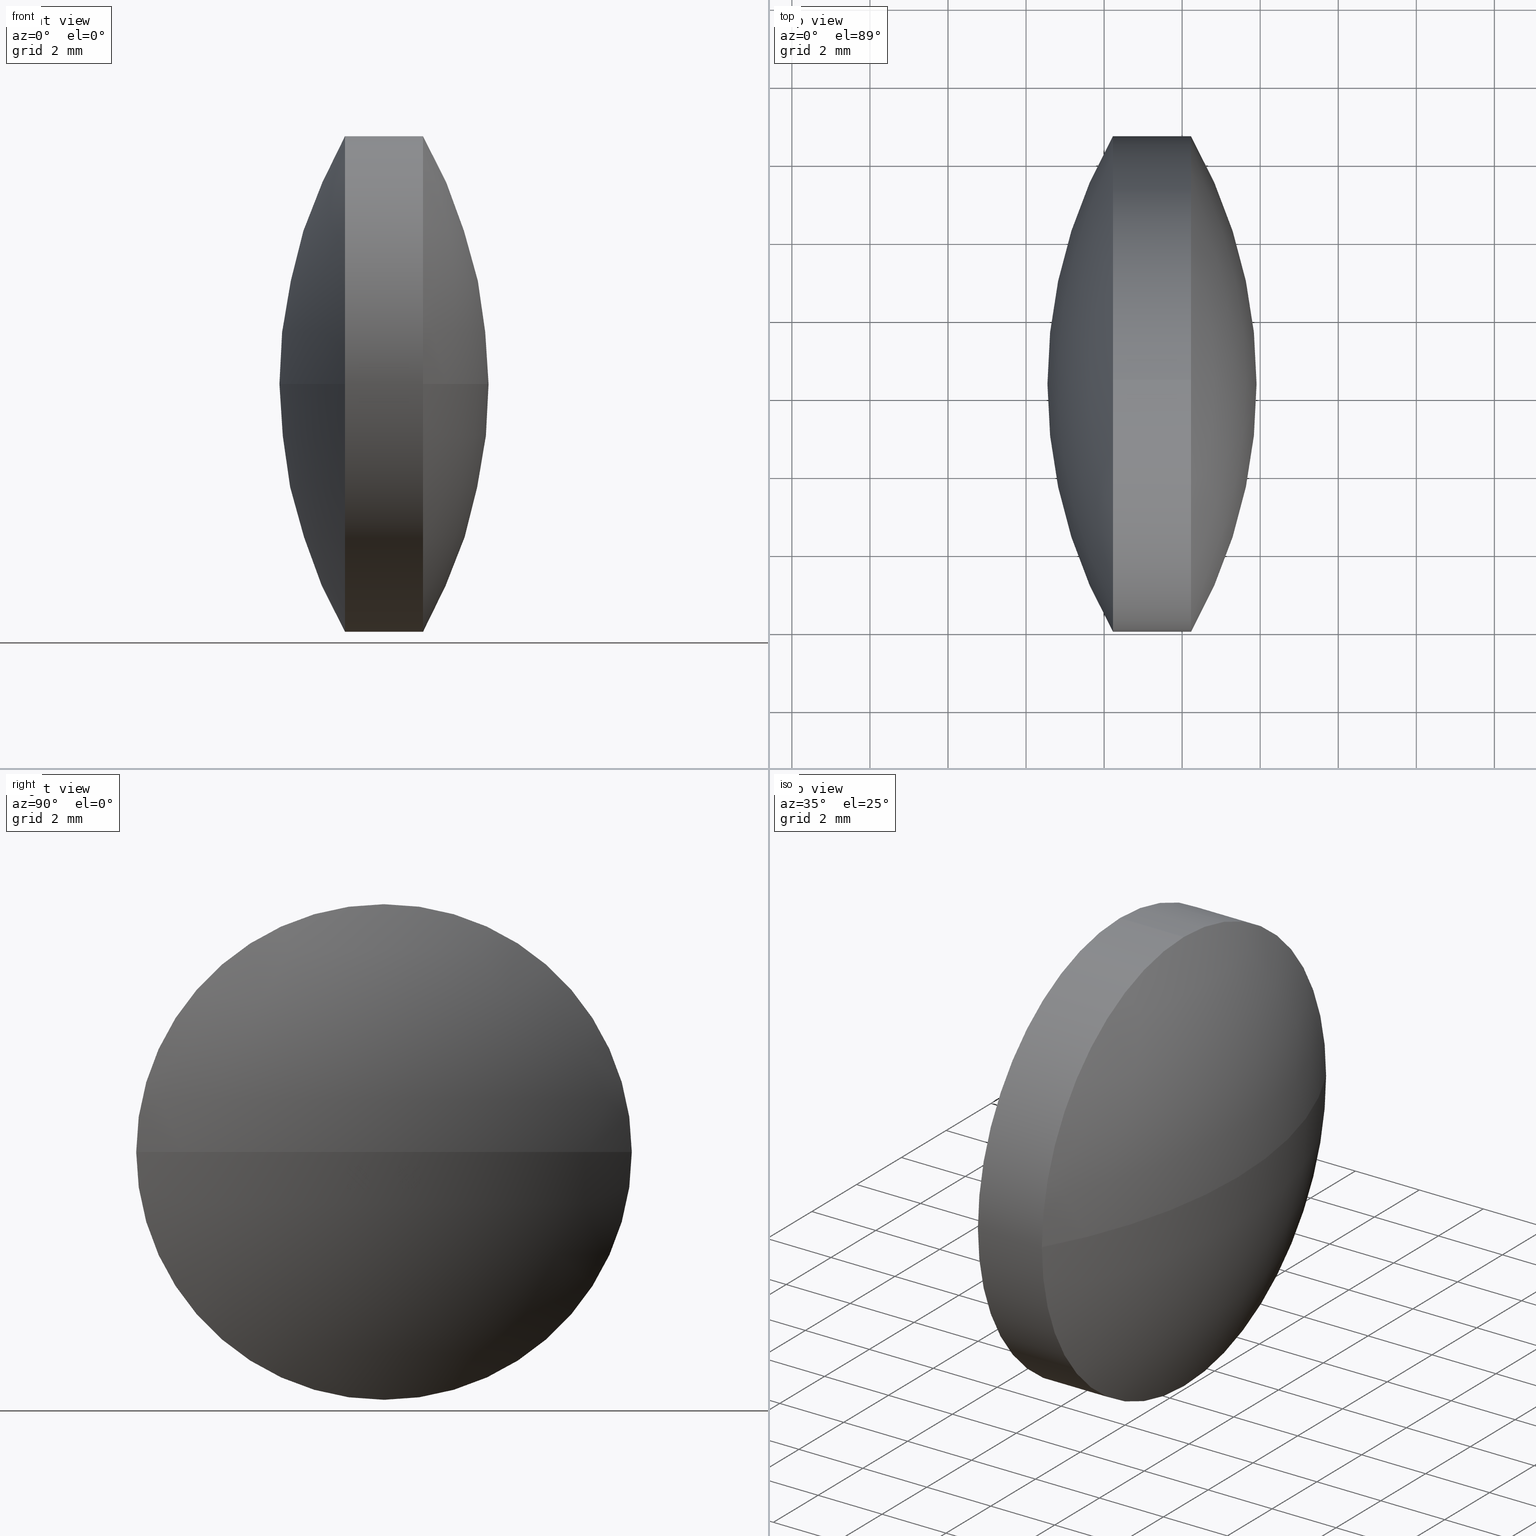
[diagram: canonical four-view strip — front | top / right | iso, engineering-drawing reading convention]
A machine part, canonical four-view strip (front | top / right | iso — engineering-drawing reading convention). The complete STEP part file that produces these views, byte-faithful:
ISO-10303-21;
HEADER;
FILE_DESCRIPTION (( 'STEP AP203' ),
    '1' );
FILE_NAME ('110094.STEP',
    '2019-07-04T02:54:57',
    ( '' ),
    ( '' ),
    'SwSTEP 2.0',
    'SolidWorks 2016',
    '' );
FILE_SCHEMA (( 'CONFIG_CONTROL_DESIGN' ));
ENDSEC;

DATA;
#1 = COORDINATED_UNIVERSAL_TIME_OFFSET ( 8, 0, .AHEAD. ) ;
#2 = EDGE_CURVE ( 'NONE', #47, #90, #146, .T. ) ;
#3 = ORIENTED_EDGE ( 'NONE', *, *, #37, .T. ) ;
#4 = CC_DESIGN_APPROVAL ( #145, ( #206 ) ) ;
#5 = EDGE_LOOP ( 'NONE', ( #221, #13, #307, #100 ) ) ;
#6 = AXIS2_PLACEMENT_3D ( 'NONE', #250, #91, #310 ) ;
#7 = SECURITY_CLASSIFICATION_LEVEL ( 'unclassified' ) ;
#8 = AXIS2_PLACEMENT_3D ( 'NONE', #274, #305, #254 ) ;
#9 = APPROVAL_ROLE ( '' ) ;
#10 = VERTEX_POINT ( 'NONE', #329 ) ;
#11 = DATE_AND_TIME ( #32, #161 ) ;
#12 = DATE_AND_TIME ( #141, #191 ) ;
#13 = ORIENTED_EDGE ( 'NONE', *, *, #230, .T. ) ;
#14 = PERSON_AND_ORGANIZATION ( #45, #50 ) ;
#15 = CARTESIAN_POINT ( 'NONE',  ( 42.22761479768103500, 17.95744082790685400, -7.776240560623605200E-016 ) ) ;
#16 = DIRECTION ( 'NONE',  ( 0.0000000000000000000, 0.0000000000000000000, 1.000000000000000000 ) ) ;
#17 = AXIS2_PLACEMENT_3D ( 'NONE', #117, #171, #33 ) ;
#18 = CYLINDRICAL_SURFACE ( 'NONE', #79, 6.349782293178511100 ) ;
#19 = CARTESIAN_POINT ( 'NONE',  ( 44.22761479768103500, 24.30722312108537200, 0.0000000000000000000 ) ) ;
#20 =( NAMED_UNIT ( * ) PLANE_ANGLE_UNIT ( ) SI_UNIT ( $, .RADIAN. ) );
#21 = CC_DESIGN_SECURITY_CLASSIFICATION ( #206, ( #72 ) ) ;
#22 = PRODUCT_DEFINITION_SHAPE ( 'NONE', 'NONE',  #188 ) ;
#23 = PERSON_AND_ORGANIZATION_ROLE ( 'design_owner' ) ;
#24 = CC_DESIGN_PERSON_AND_ORGANIZATION_ASSIGNMENT ( #139, #165, ( #238 ) ) ;
#25 = VERTEX_POINT ( 'NONE', #196 ) ;
#26 = AXIS2_PLACEMENT_3D ( 'NONE', #150, #311, #67 ) ;
#27 = ORIENTED_EDGE ( 'NONE', *, *, #343, .T. ) ;
#28 = DATE_AND_TIME ( #241, #127 ) ;
#29 = COORDINATED_UNIVERSAL_TIME_OFFSET ( 8, 0, .AHEAD. ) ;
#30 = EDGE_LOOP ( 'NONE', ( #247, #218, #3, #120 ) ) ;
#31 = DIRECTION ( 'NONE',  ( -1.000000000000000000, -0.0000000000000000000, -0.0000000000000000000 ) ) ;
#32 = CALENDAR_DATE ( 2019, 4, 7 ) ;
#33 = DIRECTION ( 'NONE',  ( 1.000000000000000000, 0.0000000000000000000, 0.0000000000000000000 ) ) ;
#34 = CC_DESIGN_PERSON_AND_ORGANIZATION_ASSIGNMENT ( #298, #244, ( #72 ) ) ;
#35 = ORIENTED_EDGE ( 'NONE', *, *, #69, .F. ) ;
#36 = DIRECTION ( 'NONE',  ( 0.0000000000000000000, 0.0000000000000000000, 1.000000000000000000 ) ) ;
#37 = EDGE_CURVE ( 'NONE', #163, #47, #63, .T. ) ;
#38 = CC_DESIGN_DATE_AND_TIME_ASSIGNMENT ( #82, #138, ( #238 ) ) ;
#39 = DIRECTION ( 'NONE',  ( 0.0000000000000000000, 0.0000000000000000000, 1.000000000000000000 ) ) ;
#40 = PERSON_AND_ORGANIZATION ( #45, #50 ) ;
#41 = COORDINATED_UNIVERSAL_TIME_OFFSET ( 8, 0, .AHEAD. ) ;
#42 = APPROVAL_PERSON_ORGANIZATION ( #60, #145, #168 ) ;
#43 = DIRECTION ( 'NONE',  ( -1.000000000000000000, -0.0000000000000000000, -0.0000000000000000000 ) ) ;
#44 = DIRECTION ( 'NONE',  ( 0.0000000000000000000, 0.0000000000000000000, 1.000000000000000000 ) ) ;
#45 = PERSON ( 'δָ��', 'δָ��', 'δָ��', ('δָ��'), ('δָ��'), ('δָ��') ) ;
#46 = DIRECTION ( 'NONE',  ( -1.000000000000000000, -0.0000000000000000000, -0.0000000000000000000 ) ) ;
#47 = VERTEX_POINT ( 'NONE', #277 ) ;
#48 = CARTESIAN_POINT ( 'NONE',  ( 0.0000000000000000000, 0.0000000000000000000, 0.0000000000000000000 ) ) ;
#49 = APPLICATION_CONTEXT ( 'configuration controlled 3d designs of mechanical parts and assemblies' ) ;
#50 = ORGANIZATION ( 'δָ��', 'δָ��', '' ) ;
#51 = PERSON_AND_ORGANIZATION ( #45, #50 ) ;
#52 = CLOSED_SHELL ( 'NONE', ( #78, #220, #207, #119, #231, #129 ) ) ;
#53 = PRODUCT_RELATED_PRODUCT_CATEGORY ( 'detail', '', ( #322 ) ) ;
#54 = APPLICATION_PROTOCOL_DEFINITION ( 'international standard', 'config_control_design', 1994, #300 ) ;
#55 = MECHANICAL_CONTEXT ( 'NONE', #242, 'mechanical' ) ;
#56 = APPROVAL ( #328, 'δָ��' ) ;
#57 = SPHERICAL_SURFACE ( 'NONE', #179, 12.84252496801100900 ) ;
#58 = APPLICATION_PROTOCOL_DEFINITION ( 'international standard', 'config_control_design', 1994, #242 ) ;
#59 = PERSON_AND_ORGANIZATION ( #45, #50 ) ;
#60 = PERSON_AND_ORGANIZATION ( #45, #50 ) ;
#61 = APPROVAL_STATUS ( 'not_yet_approved' ) ;
#62 = DIRECTION ( 'NONE',  ( 0.0000000000000000000, 0.0000000000000000000, 1.000000000000000000 ) ) ;
#63 = CIRCLE ( 'NONE', #6, 6.349782293178511100 ) ;
#64 = DIRECTION ( 'NONE',  ( -0.0000000000000000000, 0.0000000000000000000, -1.000000000000000000 ) ) ;
#65 = LINE ( 'NONE', #255, #189 ) ;
#66 = DIRECTION ( 'NONE',  ( 0.0000000000000000000, 1.000000000000000000, 0.0000000000000000000 ) ) ;
#67 = DIRECTION ( 'NONE',  ( 0.0000000000000000000, 0.0000000000000000000, 1.000000000000000000 ) ) ;
#68 = DIRECTION ( 'NONE',  ( 0.0000000000000000000, -1.000000000000000000, -1.224646799147353200E-016 ) ) ;
#69 = EDGE_CURVE ( 'NONE', #25, #137, #105, .T. ) ;
#70 = ORIENTED_EDGE ( 'NONE', *, *, #230, .F. ) ;
#71 = DIRECTION ( 'NONE',  ( -1.000000000000000000, -0.0000000000000000000, -0.0000000000000000000 ) ) ;
#72 = PRODUCT_DEFINITION_FORMATION_WITH_SPECIFIED_SOURCE ( '�κ�', '', #322, .NOT_KNOWN. ) ;
#73 = DIRECTION ( 'NONE',  ( 1.000000000000000000, 0.0000000000000000000, 0.0000000000000000000 ) ) ;
#74 = DIRECTION ( 'NONE',  ( 0.0000000000000000000, 0.0000000000000000000, 1.000000000000000000 ) ) ;
#75 = MANIFOLD_SOLID_BREP ( '��ת1', #52 ) ;
#76 = PERSON_AND_ORGANIZATION ( #45, #50 ) ;
#77 = PRODUCT_DEFINITION_FORMATION_WITH_SPECIFIED_SOURCE ( '�κ�', '', #287, .NOT_KNOWN. ) ;
#78 = ADVANCED_FACE ( 'NONE', ( #340 ), #18, .T. ) ;
#79 = AXIS2_PLACEMENT_3D ( 'NONE', #326, #31, #62 ) ;
#80 = ORIENTED_EDGE ( 'NONE', *, *, #252, .F. ) ;
#81 = EDGE_LOOP ( 'NONE', ( #237, #177, #275, #279, #205, #35 ) ) ;
#82 = DATE_AND_TIME ( #112, #243 ) ;
#83 = CALENDAR_DATE ( 2019, 4, 7 ) ;
#84 = PERSON_AND_ORGANIZATION_ROLE ( 'classification_officer' ) ;
#85 = APPROVAL_STATUS ( 'not_yet_approved' ) ;
#86 = SPHERICAL_SURFACE ( 'NONE', #211, 12.84252496801103400 ) ;
#87 = EDGE_CURVE ( 'NONE', #10, #160, #304, .T. ) ;
#88 = APPROVAL_DATE_TIME ( #11, #94 ) ;
#89 = CC_DESIGN_PERSON_AND_ORGANIZATION_ASSIGNMENT ( #113, #23, ( #322 ) ) ;
#90 = VERTEX_POINT ( 'NONE', #121 ) ;
#91 = DIRECTION ( 'NONE',  ( -1.000000000000000000, -0.0000000000000000000, -0.0000000000000000000 ) ) ;
#92 = APPROVAL_DATE_TIME ( #109, #233 ) ;
#93 = CARTESIAN_POINT ( 'NONE',  ( 33.06469795739136700, 24.30722312108537900, 0.0000000000000000000 ) ) ;
#94 = APPROVAL ( #61, 'δָ��' ) ;
#95 = ORIENTED_EDGE ( 'NONE', *, *, #87, .T. ) ;
#96 = CARTESIAN_POINT ( 'NONE',  ( 44.22761479768103500, 24.30722312108537200, 0.0000000000000000000 ) ) ;
#97 = AXIS2_PLACEMENT_3D ( 'NONE', #19, #71, #125 ) ;
#98 = DIRECTION ( 'NONE',  ( -1.000000000000000000, -0.0000000000000000000, -0.0000000000000000000 ) ) ;
#99 = DIRECTION ( 'NONE',  ( 1.000000000000000000, 0.0000000000000000000, 0.0000000000000000000 ) ) ;
#100 = ORIENTED_EDGE ( 'NONE', *, *, #216, .F. ) ;
#101 = CARTESIAN_POINT ( 'NONE',  ( 33.06469795739136700, 24.30722312108537900, 0.0000000000000000000 ) ) ;
#102 = PERSON_AND_ORGANIZATION ( #45, #50 ) ;
#103 = DIRECTION ( 'NONE',  ( -1.000000000000000000, 0.0000000000000000000, 0.0000000000000000000 ) ) ;
#104 = APPROVAL_PERSON_ORGANIZATION ( #245, #162, #158 ) ;
#105 = CIRCLE ( 'NONE', #8, 6.349782293178511100 ) ;
#106 = PERSON_AND_ORGANIZATION ( #45, #50 ) ;
#107 = ORIENTED_EDGE ( 'NONE', *, *, #292, .T. ) ;
#108 = CC_DESIGN_APPROVAL ( #162, ( #188 ) ) ;
#109 = DATE_AND_TIME ( #248, #308 ) ;
#110 = APPROVAL_ROLE ( '' ) ;
#111 = CC_DESIGN_SECURITY_CLASSIFICATION ( #174, ( #77 ) ) ;
#112 = CALENDAR_DATE ( 2019, 4, 7 ) ;
#113 = PERSON_AND_ORGANIZATION ( #45, #50 ) ;
#114 = PERSON_AND_ORGANIZATION_ROLE ( 'design_supplier' ) ;
#115 = DATE_AND_TIME ( #337, #253 ) ;
#116 = DATE_TIME_ROLE ( 'classification_date' ) ;
#117 = CARTESIAN_POINT ( 'NONE',  ( 53.39053163797073900, 24.30722312108536800, 0.0000000000000000000 ) ) ;
#118 = AXIS2_PLACEMENT_3D ( 'NONE', #203, #228, #73 ) ;
#119 = ADVANCED_FACE ( 'NONE', ( #264 ), #258, .T. ) ;
#120 = ORIENTED_EDGE ( 'NONE', *, *, #2, .T. ) ;
#121 = CARTESIAN_POINT ( 'NONE',  ( 40.54800666995970500, 24.30722312108536800, 0.0000000000000000000 ) ) ;
#122 = DATE_AND_TIME ( #270, #134 ) ;
#123 = DIRECTION ( 'NONE',  ( 0.0000000000000000000, -1.224646799147353200E-016, 1.000000000000000000 ) ) ;
#124 = ADVANCED_BREP_SHAPE_REPRESENTATION ( '110094', ( #75, #130 ), #153 ) ;
#125 = DIRECTION ( 'NONE',  ( 0.0000000000000000000, 0.0000000000000000000, 1.000000000000000000 ) ) ;
#126 = CIRCLE ( 'NONE', #97, 6.349782293178511100 ) ;
#127 = LOCAL_TIME ( 10, 54, 57.00000000000000000, #332 ) ;
#128 = DIRECTION ( 'NONE',  ( 0.0000000000000000000, 1.000000000000000000, 1.224646799147353200E-016 ) ) ;
#129 = ADVANCED_FACE ( 'NONE', ( #225 ), #173, .T. ) ;
#130 = AXIS2_PLACEMENT_3D ( 'NONE', #48, #259, #99 ) ;
#131 =( NAMED_UNIT ( * ) SI_UNIT ( $, .STERADIAN. ) SOLID_ANGLE_UNIT ( ) );
#132 = APPROVAL_STATUS ( 'not_yet_approved' ) ;
#133 = FACE_OUTER_BOUND ( 'NONE', #212, .T. ) ;
#134 = LOCAL_TIME ( 10, 54, 57.00000000000000000, #1 ) ;
#135 = AXIS2_PLACEMENT_3D ( 'NONE', #96, #98, #197 ) ;
#136 = AXIS2_PLACEMENT_3D ( 'NONE', #101, #155, #103 ) ;
#137 = VERTEX_POINT ( 'NONE', #15 ) ;
#138 = DATE_TIME_ROLE ( 'creation_date' ) ;
#139 = PERSON_AND_ORGANIZATION ( #45, #50 ) ;
#140 = CIRCLE ( 'NONE', #192, 12.84252496801100900 ) ;
#141 = CALENDAR_DATE ( 2019, 4, 7 ) ;
#142 = APPROVAL_STATUS ( 'not_yet_approved' ) ;
#143 = ORIENTED_EDGE ( 'NONE', *, *, #262, .F. ) ;
#144 = APPROVAL_PERSON_ORGANIZATION ( #106, #94, #9 ) ;
#145 = APPROVAL ( #142, 'δָ��' ) ;
#146 = CIRCLE ( 'NONE', #17, 12.84252496801104100 ) ;
#147 = APPROVAL_PERSON_ORGANIZATION ( #59, #266, #110 ) ;
#148 = CC_DESIGN_DATE_AND_TIME_ASSIGNMENT ( #164, #116, ( #174 ) ) ;
#149 = CARTESIAN_POINT ( 'NONE',  ( 44.22761479768103500, 24.30722312108537200, -6.349782293178511100 ) ) ;
#150 = CARTESIAN_POINT ( 'NONE',  ( 39.65134120086310100, 24.30722312108537200, 0.0000000000000000000 ) ) ;
#151 = FACE_OUTER_BOUND ( 'NONE', #5, .T. ) ;
#152 = CARTESIAN_POINT ( 'NONE',  ( 33.06469795739136700, 24.30722312108537900, 0.0000000000000000000 ) ) ;
#153 =( GEOMETRIC_REPRESENTATION_CONTEXT ( 3 ) GLOBAL_UNCERTAINTY_ASSIGNED_CONTEXT ( ( #198 ) ) GLOBAL_UNIT_ASSIGNED_CONTEXT ( ( #288, #20, #131 ) ) REPRESENTATION_CONTEXT ( 'NONE', 'WORKASPACE' ) );
#154 = DATE_TIME_ROLE ( 'creation_date' ) ;
#155 = DIRECTION ( 'NONE',  ( 0.0000000000000000000, 0.0000000000000000000, -1.000000000000000000 ) ) ;
#156 = APPLICATION_CONTEXT ( 'configuration controlled 3d designs of mechanical parts and assemblies' ) ;
#157 = ORIENTED_EDGE ( 'NONE', *, *, #69, .T. ) ;
#158 = APPROVAL_ROLE ( '' ) ;
#159 = AXIS2_PLACEMENT_3D ( 'NONE', #223, #338, #66 ) ;
#160 = VERTEX_POINT ( 'NONE', #149 ) ;
#161 = LOCAL_TIME ( 10, 54, 57.00000000000000000, #285 ) ;
#162 = APPROVAL ( #132, 'δָ��' ) ;
#163 = VERTEX_POINT ( 'NONE', #334 ) ;
#164 = DATE_AND_TIME ( #83, #299 ) ;
#165 = PERSON_AND_ORGANIZATION_ROLE ( 'creator' ) ;
#166 = CALENDAR_DATE ( 2019, 4, 7 ) ;
#167 = VERTEX_POINT ( 'NONE', #283 ) ;
#168 = APPROVAL_ROLE ( '' ) ;
#169 = AXIS2_PLACEMENT_3D ( 'NONE', #93, #16, #313 ) ;
#170 = CC_DESIGN_DATE_AND_TIME_ASSIGNMENT ( #115, #267, ( #206 ) ) ;
#171 = DIRECTION ( 'NONE',  ( -0.0000000000000000000, 0.0000000000000000000, 1.000000000000000000 ) ) ;
#172 = APPROVAL_DATE_TIME ( #180, #56 ) ;
#173 = CYLINDRICAL_SURFACE ( 'NONE', #26, 6.349782293178511100 ) ;
#174 = SECURITY_CLASSIFICATION ( '', '', #302 ) ;
#175 = CARTESIAN_POINT ( 'NONE',  ( 44.22761479768103500, 17.95744082790685800, 0.0000000000000000000 ) ) ;
#176 = DIRECTION ( 'NONE',  ( -1.000000000000000000, -0.0000000000000000000, -0.0000000000000000000 ) ) ;
#177 = ORIENTED_EDGE ( 'NONE', *, *, #195, .T. ) ;
#178 = CARTESIAN_POINT ( 'NONE',  ( 42.22761479768103500, 24.30722312108537200, 0.0000000000000000000 ) ) ;
#179 = AXIS2_PLACEMENT_3D ( 'NONE', #152, #39, #200 ) ;
#180 = DATE_AND_TIME ( #257, #335 ) ;
#181 = ORIENTED_EDGE ( 'NONE', *, *, #321, .T. ) ;
#182 = CARTESIAN_POINT ( 'NONE',  ( 39.65134120086310100, 24.30722312108537200, -6.349782293178511100 ) ) ;
#183 = APPROVAL_PERSON_ORGANIZATION ( #102, #233, #273 ) ;
#184 = COORDINATED_UNIVERSAL_TIME_OFFSET ( 8, 0, .AHEAD. ) ;
#185 = CC_DESIGN_PERSON_AND_ORGANIZATION_ASSIGNMENT ( #40, #301, ( #77 ) ) ;
#186 = LINE ( 'NONE', #182, #209 ) ;
#187 = AXIS2_PLACEMENT_3D ( 'NONE', #282, #251, #44 ) ;
#188 = PRODUCT_DEFINITION ( 'δ֪', '', #72, #294 ) ;
#189 = VECTOR ( 'NONE', #43, 1000.000000000000000 ) ;
#190 = PERSON_AND_ORGANIZATION ( #45, #50 ) ;
#191 = LOCAL_TIME ( 10, 54, 57.00000000000000000, #263 ) ;
#192 = AXIS2_PLACEMENT_3D ( 'NONE', #224, #123, #68 ) ;
#193 = APPROVAL_DATE_TIME ( #339, #162 ) ;
#194 = ORIENTED_EDGE ( 'NONE', *, *, #195, .F. ) ;
#195 = EDGE_CURVE ( 'NONE', #160, #318, #126, .T. ) ;
#196 = CARTESIAN_POINT ( 'NONE',  ( 42.22761479768103500, 24.30722312108537200, -6.349782293178511100 ) ) ;
#197 = DIRECTION ( 'NONE',  ( 0.0000000000000000000, 0.0000000000000000000, 1.000000000000000000 ) ) ;
#198 = UNCERTAINTY_MEASURE_WITH_UNIT (LENGTH_MEASURE( 1.000000000000000100E-005 ), #288, 'distance_accuracy_value', 'NONE');
#199 = SPHERICAL_SURFACE ( 'NONE', #169, 12.84252496801100900 ) ;
#200 = DIRECTION ( 'NONE',  ( 0.0000000000000000000, -1.000000000000000000, 0.0000000000000000000 ) ) ;
#201 = CC_DESIGN_PERSON_AND_ORGANIZATION_ASSIGNMENT ( #76, #114, ( #77 ) ) ;
#202 = APPROVAL_DATE_TIME ( #122, #145 ) ;
#203 = CARTESIAN_POINT ( 'NONE',  ( 0.0000000000000000000, 0.0000000000000000000, 0.0000000000000000000 ) ) ;
#204 = DIRECTION ( 'NONE',  ( -1.000000000000000000, -0.0000000000000000000, -0.0000000000000000000 ) ) ;
#205 = ORIENTED_EDGE ( 'NONE', *, *, #281, .F. ) ;
#206 = SECURITY_CLASSIFICATION ( '', '', #7 ) ;
#207 = ADVANCED_FACE ( 'NONE', ( #232 ), #86, .T. ) ;
#208 = APPROVAL_DATE_TIME ( #12, #266 ) ;
#209 = VECTOR ( 'NONE', #319, 1000.000000000000000 ) ;
#210 = VERTEX_POINT ( 'NONE', #336 ) ;
#211 = AXIS2_PLACEMENT_3D ( 'NONE', #315, #64, #280 ) ;
#212 = EDGE_LOOP ( 'NONE', ( #70, #290, #194, #240 ) ) ;
#213 = CC_DESIGN_PERSON_AND_ORGANIZATION_ASSIGNMENT ( #190, #316, ( #188 ) ) ;
#214 = APPROVAL_STATUS ( 'not_yet_approved' ) ;
#215 = APPROVAL_PERSON_ORGANIZATION ( #234, #56, #324 ) ;
#216 = EDGE_CURVE ( 'NONE', #318, #210, #269, .T. ) ;
#217 = PERSON_AND_ORGANIZATION_ROLE ( 'classification_officer' ) ;
#218 = ORIENTED_EDGE ( 'NONE', *, *, #281, .T. ) ;
#219 = AXIS2_PLACEMENT_3D ( 'NONE', #226, #204, #36 ) ;
#220 = ADVANCED_FACE ( 'NONE', ( #151 ), #57, .T. ) ;
#221 = ORIENTED_EDGE ( 'NONE', *, *, #327, .F. ) ;
#222 = PERSON_AND_ORGANIZATION ( #45, #50 ) ;
#223 = CARTESIAN_POINT ( 'NONE',  ( 53.39053163797073900, 24.30722312108536800, 0.0000000000000000000 ) ) ;
#224 = CARTESIAN_POINT ( 'NONE',  ( 33.06469795739136700, 24.30722312108537900, 0.0000000000000000000 ) ) ;
#225 = FACE_OUTER_BOUND ( 'NONE', #81, .T. ) ;
#226 = CARTESIAN_POINT ( 'NONE',  ( 42.22761479768103500, 24.30722312108537200, 0.0000000000000000000 ) ) ;
#227 = DIRECTION ( 'NONE',  ( 0.0000000000000000000, 0.0000000000000000000, 1.000000000000000000 ) ) ;
#228 = DIRECTION ( 'NONE',  ( 0.0000000000000000000, 0.0000000000000000000, 1.000000000000000000 ) ) ;
#229 = PRODUCT_DEFINITION_SHAPE ( 'NONE', 'NONE',  #238 ) ;
#230 = EDGE_CURVE ( 'NONE', #167, #10, #140, .T. ) ;
#231 = ADVANCED_FACE ( 'NONE', ( #133 ), #199, .T. ) ;
#232 = FACE_OUTER_BOUND ( 'NONE', #312, .T. ) ;
#233 = APPROVAL ( #214, 'δָ��' ) ;
#234 = PERSON_AND_ORGANIZATION ( #45, #50 ) ;
#235 = CARTESIAN_POINT ( 'NONE',  ( 53.39053163797073900, 24.30722312108536800, 0.0000000000000000000 ) ) ;
#236 = LOCAL_TIME ( 10, 54, 57.00000000000000000, #29 ) ;
#237 = ORIENTED_EDGE ( 'NONE', *, *, #343, .F. ) ;
#238 = PRODUCT_DEFINITION ( 'δ֪', '', #77, #341 ) ;
#239 = CIRCLE ( 'NONE', #219, 6.349782293178511100 ) ;
#240 = ORIENTED_EDGE ( 'NONE', *, *, #87, .F. ) ;
#241 = CALENDAR_DATE ( 2019, 4, 7 ) ;
#242 = APPLICATION_CONTEXT ( 'configuration controlled 3d designs of mechanical parts and assemblies' ) ;
#243 = LOCAL_TIME ( 10, 54, 57.00000000000000000, #184 ) ;
#244 = PERSON_AND_ORGANIZATION_ROLE ( 'creator' ) ;
#245 = PERSON_AND_ORGANIZATION ( #45, #50 ) ;
#246 = PERSON_AND_ORGANIZATION ( #45, #50 ) ;
#247 = ORIENTED_EDGE ( 'NONE', *, *, #292, .F. ) ;
#248 = CALENDAR_DATE ( 2019, 4, 7 ) ;
#249 = CC_DESIGN_PERSON_AND_ORGANIZATION_ASSIGNMENT ( #51, #271, ( #287 ) ) ;
#250 = CARTESIAN_POINT ( 'NONE',  ( 42.22761479768103500, 24.30722312108537200, 0.0000000000000000000 ) ) ;
#251 = DIRECTION ( 'NONE',  ( -1.000000000000000000, -0.0000000000000000000, -0.0000000000000000000 ) ) ;
#252 = EDGE_CURVE ( 'NONE', #210, #163, #65, .T. ) ;
#253 = LOCAL_TIME ( 10, 54, 57.00000000000000000, #265 ) ;
#254 = DIRECTION ( 'NONE',  ( 0.0000000000000000000, 0.0000000000000000000, 1.000000000000000000 ) ) ;
#255 = CARTESIAN_POINT ( 'NONE',  ( 39.65134120086310100, 24.30722312108537200, 6.349782293178511100 ) ) ;
#256 = CC_DESIGN_DATE_AND_TIME_ASSIGNMENT ( #28, #154, ( #188 ) ) ;
#257 = CALENDAR_DATE ( 2019, 4, 7 ) ;
#258 = SPHERICAL_SURFACE ( 'NONE', #159, 12.84252496801103400 ) ;
#259 = DIRECTION ( 'NONE',  ( 0.0000000000000000000, 0.0000000000000000000, 1.000000000000000000 ) ) ;
#260 = CARTESIAN_POINT ( 'NONE',  ( 44.22761479768103500, 24.30722312108537200, 0.0000000000000000000 ) ) ;
#261 = MECHANICAL_CONTEXT ( 'NONE', #156, 'mechanical' ) ;
#262 = EDGE_CURVE ( 'NONE', #47, #25, #345, .T. ) ;
#263 = COORDINATED_UNIVERSAL_TIME_OFFSET ( 8, 0, .AHEAD. ) ;
#264 = FACE_OUTER_BOUND ( 'NONE', #30, .T. ) ;
#265 = COORDINATED_UNIVERSAL_TIME_OFFSET ( 8, 0, .AHEAD. ) ;
#266 = APPROVAL ( #85, 'δָ��' ) ;
#267 = DATE_TIME_ROLE ( 'classification_date' ) ;
#268 = CIRCLE ( 'NONE', #136, 12.84252496801100900 ) ;
#269 = CIRCLE ( 'NONE', #187, 6.349782293178511100 ) ;
#270 = CALENDAR_DATE ( 2019, 4, 7 ) ;
#271 = PERSON_AND_ORGANIZATION_ROLE ( 'design_owner' ) ;
#272 = CC_DESIGN_APPROVAL ( #56, ( #77 ) ) ;
#273 = APPROVAL_ROLE ( '' ) ;
#274 = CARTESIAN_POINT ( 'NONE',  ( 42.22761479768103500, 24.30722312108537200, 0.0000000000000000000 ) ) ;
#275 = ORIENTED_EDGE ( 'NONE', *, *, #216, .T. ) ;
#276 = CC_DESIGN_APPROVAL ( #266, ( #238 ) ) ;
#277 = CARTESIAN_POINT ( 'NONE',  ( 42.22761479768103500, 30.65700541426388200, 0.0000000000000000000 ) ) ;
#278 = CIRCLE ( 'NONE', #309, 12.84252496801103400 ) ;
#279 = ORIENTED_EDGE ( 'NONE', *, *, #252, .T. ) ;
#280 = DIRECTION ( 'NONE',  ( 0.0000000000000000000, 1.000000000000000000, 0.0000000000000000000 ) ) ;
#281 = EDGE_CURVE ( 'NONE', #137, #163, #239, .T. ) ;
#282 = CARTESIAN_POINT ( 'NONE',  ( 44.22761479768103500, 24.30722312108537200, 0.0000000000000000000 ) ) ;
#283 = CARTESIAN_POINT ( 'NONE',  ( 45.90722292540238000, 24.30722312108537900, 0.0000000000000000000 ) ) ;
#284 = ORIENTED_EDGE ( 'NONE', *, *, #262, .T. ) ;
#285 = COORDINATED_UNIVERSAL_TIME_OFFSET ( 8, 0, .AHEAD. ) ;
#286 = DIRECTION ( 'NONE',  ( 0.0000000000000000000, 1.224646799147353200E-016, -1.000000000000000000 ) ) ;
#287 = PRODUCT ( '110094', '110094', '', ( #55 ) ) ;
#288 =( LENGTH_UNIT ( ) NAMED_UNIT ( * ) SI_UNIT ( .MILLI., .METRE. ) );
#289 = CC_DESIGN_APPROVAL ( #233, ( #72 ) ) ;
#290 = ORIENTED_EDGE ( 'NONE', *, *, #327, .T. ) ;
#291 = APPLICATION_PROTOCOL_DEFINITION ( 'international standard', 'config_control_design', 1994, #49 ) ;
#292 = EDGE_CURVE ( 'NONE', #137, #90, #278, .T. ) ;
#293 = ORIENTED_EDGE ( 'NONE', *, *, #37, .F. ) ;
#294 = DESIGN_CONTEXT ( 'detailed design', #49, 'design' ) ;
#295 = AXIS2_PLACEMENT_3D ( 'NONE', #260, #46, #74 ) ;
#296 = CIRCLE ( 'NONE', #295, 6.349782293178511100 ) ;
#297 = EDGE_LOOP ( 'NONE', ( #95, #27, #143, #293, #80, #181 ) ) ;
#298 = PERSON_AND_ORGANIZATION ( #45, #50 ) ;
#299 = LOCAL_TIME ( 10, 54, 57.00000000000000000, #41 ) ;
#300 = APPLICATION_CONTEXT ( 'configuration controlled 3d designs of mechanical parts and assemblies' ) ;
#301 = PERSON_AND_ORGANIZATION_ROLE ( 'creator' ) ;
#302 = SECURITY_CLASSIFICATION_LEVEL ( 'unclassified' ) ;
#303 = PERSON_AND_ORGANIZATION_ROLE ( 'design_supplier' ) ;
#304 = CIRCLE ( 'NONE', #135, 6.349782293178511100 ) ;
#305 = DIRECTION ( 'NONE',  ( -1.000000000000000000, -0.0000000000000000000, -0.0000000000000000000 ) ) ;
#306 = AXIS2_PLACEMENT_3D ( 'NONE', #178, #176, #227 ) ;
#307 = ORIENTED_EDGE ( 'NONE', *, *, #321, .F. ) ;
#308 = LOCAL_TIME ( 10, 54, 57.00000000000000000, #342 ) ;
#309 = AXIS2_PLACEMENT_3D ( 'NONE', #235, #286, #128 ) ;
#310 = DIRECTION ( 'NONE',  ( 0.0000000000000000000, 0.0000000000000000000, 1.000000000000000000 ) ) ;
#311 = DIRECTION ( 'NONE',  ( -1.000000000000000000, -0.0000000000000000000, -0.0000000000000000000 ) ) ;
#312 = EDGE_LOOP ( 'NONE', ( #284, #157, #107, #330 ) ) ;
#313 = DIRECTION ( 'NONE',  ( 0.0000000000000000000, -1.000000000000000000, 0.0000000000000000000 ) ) ;
#314 = SHAPE_DEFINITION_REPRESENTATION ( #229, #124 ) ;
#315 = CARTESIAN_POINT ( 'NONE',  ( 53.39053163797073900, 24.30722312108536800, 0.0000000000000000000 ) ) ;
#316 = PERSON_AND_ORGANIZATION_ROLE ( 'creator' ) ;
#317 = CC_DESIGN_PERSON_AND_ORGANIZATION_ASSIGNMENT ( #222, #303, ( #72 ) ) ;
#318 = VERTEX_POINT ( 'NONE', #175 ) ;
#319 = DIRECTION ( 'NONE',  ( -1.000000000000000000, -0.0000000000000000000, -0.0000000000000000000 ) ) ;
#320 = PRODUCT_RELATED_PRODUCT_CATEGORY ( 'detail', '', ( #287 ) ) ;
#321 = EDGE_CURVE ( 'NONE', #210, #10, #296, .T. ) ;
#322 = PRODUCT ( '110094', '110094', '', ( #261 ) ) ;
#323 = COORDINATED_UNIVERSAL_TIME_OFFSET ( 8, 0, .AHEAD. ) ;
#324 = APPROVAL_ROLE ( '' ) ;
#325 = CC_DESIGN_APPROVAL ( #94, ( #174 ) ) ;
#326 = CARTESIAN_POINT ( 'NONE',  ( 39.65134120086310100, 24.30722312108537200, 0.0000000000000000000 ) ) ;
#327 = EDGE_CURVE ( 'NONE', #167, #318, #268, .T. ) ;
#328 = APPROVAL_STATUS ( 'not_yet_approved' ) ;
#329 = CARTESIAN_POINT ( 'NONE',  ( 44.22761479768103500, 30.65700541426388900, 7.776240560623603200E-016 ) ) ;
#330 = ORIENTED_EDGE ( 'NONE', *, *, #2, .F. ) ;
#331 = CC_DESIGN_PERSON_AND_ORGANIZATION_ASSIGNMENT ( #14, #84, ( #206 ) ) ;
#332 = COORDINATED_UNIVERSAL_TIME_OFFSET ( 8, 0, .AHEAD. ) ;
#333 = CC_DESIGN_PERSON_AND_ORGANIZATION_ASSIGNMENT ( #246, #217, ( #174 ) ) ;
#334 = CARTESIAN_POINT ( 'NONE',  ( 42.22761479768103500, 24.30722312108537200, 6.349782293178511100 ) ) ;
#335 = LOCAL_TIME ( 10, 54, 57.00000000000000000, #323 ) ;
#336 = CARTESIAN_POINT ( 'NONE',  ( 44.22761479768103500, 24.30722312108537200, 6.349782293178511100 ) ) ;
#337 = CALENDAR_DATE ( 2019, 4, 7 ) ;
#338 = DIRECTION ( 'NONE',  ( -0.0000000000000000000, 0.0000000000000000000, -1.000000000000000000 ) ) ;
#339 = DATE_AND_TIME ( #166, #236 ) ;
#340 = FACE_OUTER_BOUND ( 'NONE', #297, .T. ) ;
#341 = DESIGN_CONTEXT ( 'detailed design', #300, 'design' ) ;
#342 = COORDINATED_UNIVERSAL_TIME_OFFSET ( 8, 0, .AHEAD. ) ;
#343 = EDGE_CURVE ( 'NONE', #160, #25, #186, .T. ) ;
#344 = APPLICATION_PROTOCOL_DEFINITION ( 'international standard', 'config_control_design', 1994, #156 ) ;
#345 = CIRCLE ( 'NONE', #306, 6.349782293178511100 ) ;
ENDSEC;
END-ISO-10303-21;
